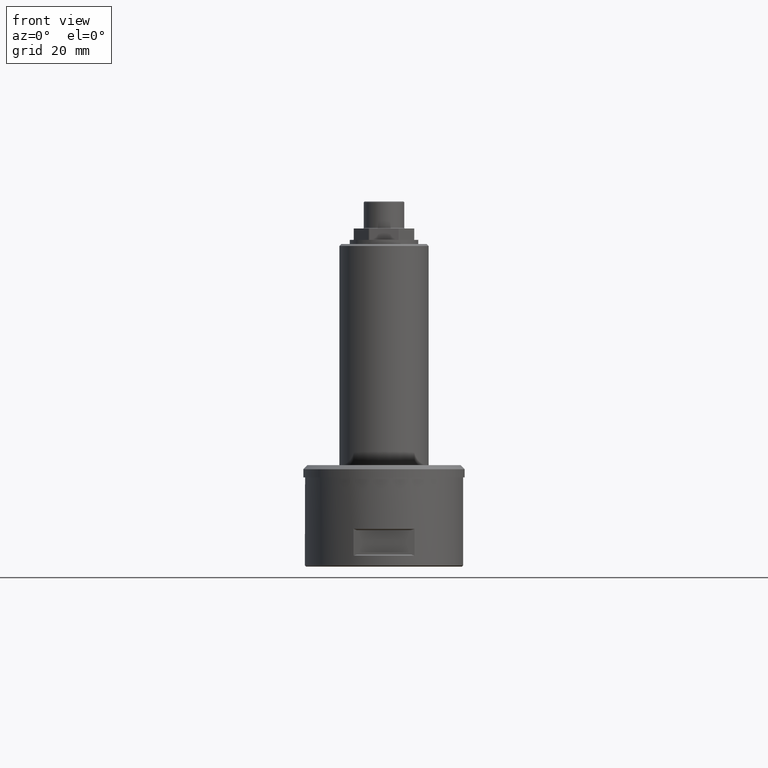
[diagram: clean part render]
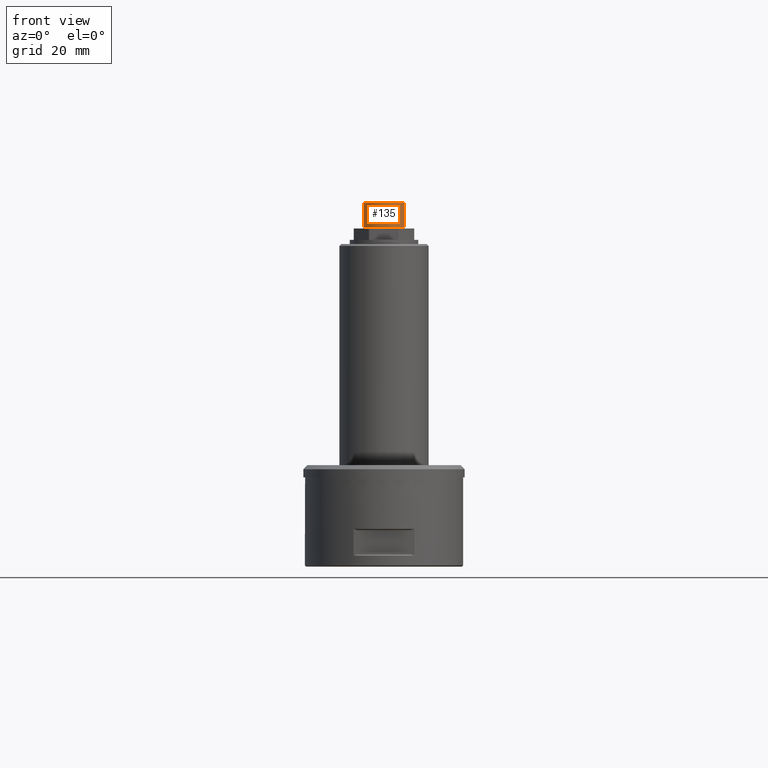
[diagram: same view with one face highlighted and labeled with its STEP entity id]
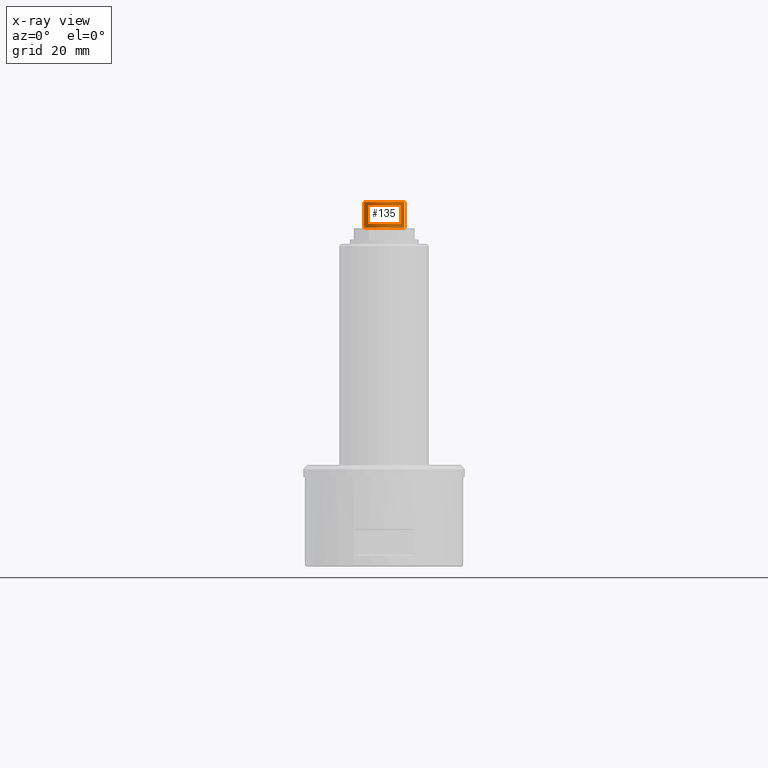
[diagram: x-ray of the same camera — body ghosted, the highlighted face saturated]
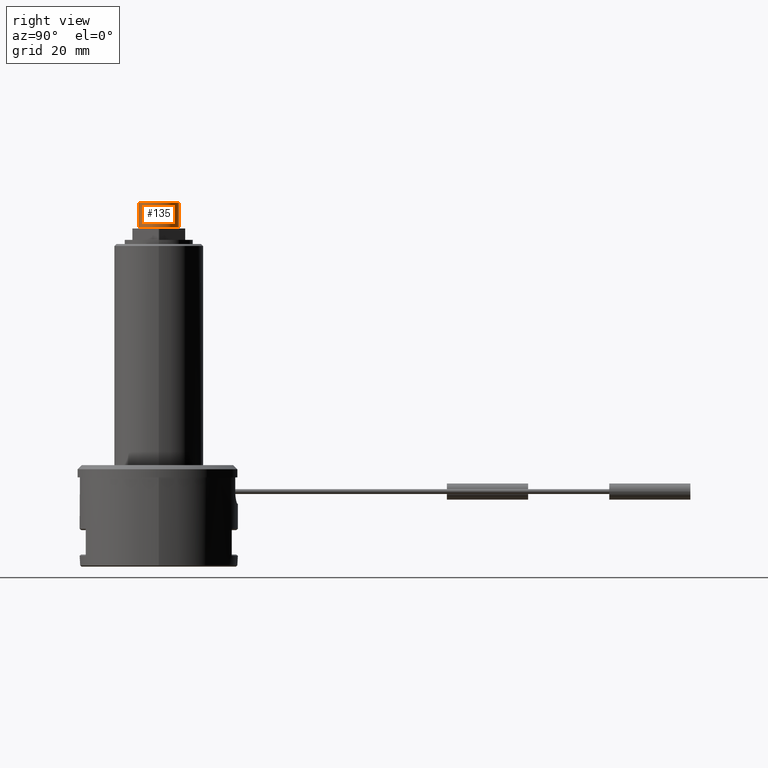
[diagram: same view with one face highlighted and labeled with its STEP entity id]
A machine part, front view. The second image highlights one B-rep face of the part: STEP entity #135.
The next image is the same camera in x-ray: the body ghosted, the highlighted face saturated — about 0% of this face is hidden behind the body in this view.
A second angle (right view) of the same face is appended — the face is thin or edge-on in the first view.
In plain terms, the highlighted cylindrical surface (bore or boss wall) has radius 5 mm, axis along (0, 0, 1).
Its self-contained STEP definition (entity closure, byte-faithful):
#78=CYLINDRICAL_SURFACE('',#984,5.);
#135=ADVANCED_FACE('',(#316,#317),#78,.T.);
#316=FACE_BOUND('',#380,.T.);
#317=FACE_BOUND('',#381,.T.);
#380=EDGE_LOOP('',(#514));
#381=EDGE_LOOP('',(#515));
#514=ORIENTED_EDGE('',*,*,#824,.T.);
#515=ORIENTED_EDGE('',*,*,#825,.T.);
#724=VERTEX_POINT('',#1553);
#725=VERTEX_POINT('',#1555);
#824=EDGE_CURVE('',#724,#724,#916,.T.);
#825=EDGE_CURVE('',#725,#725,#917,.T.);
#916=CIRCLE('',#982,5.);
#917=CIRCLE('',#983,5.);
#982=AXIS2_PLACEMENT_3D('',#1552,#1154,#1155);
#983=AXIS2_PLACEMENT_3D('',#1554,#1156,#1157);
#984=AXIS2_PLACEMENT_3D('',#1556,#1158,#1159);
#1154=DIRECTION('',(0.,0.,1.));
#1155=DIRECTION('',(-1.,0.,0.));
#1156=DIRECTION('',(0.,0.,-1.));
#1157=DIRECTION('',(-1.,0.,0.));
#1158=DIRECTION('',(0.,0.,1.));
#1159=DIRECTION('',(1.,0.,0.));
#1552=CARTESIAN_POINT('',(0.,0.,83.5));
#1553=CARTESIAN_POINT('',(-5.,0.,83.5));
#1554=CARTESIAN_POINT('',(0.,0.,89.8));
#1555=CARTESIAN_POINT('',(-5.,0.,89.8));
#1556=CARTESIAN_POINT('',(0.,0.,0.));